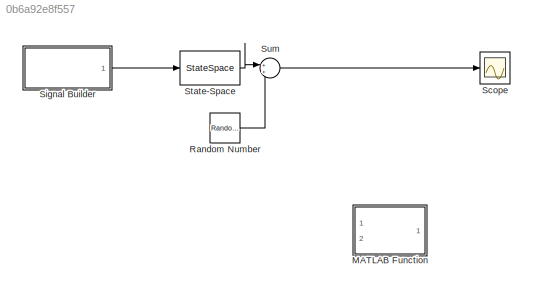
MODEL slx_0b6a92e8f557
KIND model
CONFIG AbsTol = auto
CONFIG EnableMultiTasking = off
CONFIG FixedStep = auto
CONFIG MaxStep = auto
CONFIG MinStep = auto
CONFIG RelTol = 1e-3
CONFIG SampleTimeConstraint = Unconstrained
CONFIG Solver = VariableStepAuto
CONFIG SolverName = VariableStepAuto
CONFIG StartTime = 0.0
CONFIG StopTime = 10.0
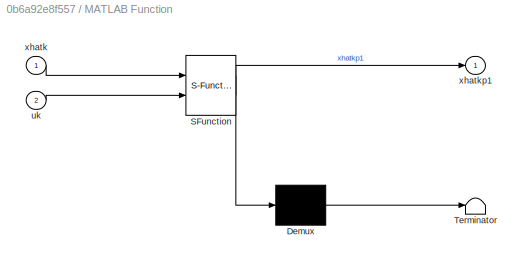
BLOCK [SubSystem] MATLAB Function
  ErrorFcn = Stateflow.Translate.translate
  PermitHierarchicalResolution = ExplicitOnly
  Ports = [2, 1]
  RequestExecContextInheritance = off
  SFBlockType = MATLAB Function
  TreatAsAtomicUnit = on
  Variant = off
BLOCK [Demux] MATLAB Function/ Demux 
  Outputs = 1
  Ports = [1, 1]
BLOCK [S-Function] MATLAB Function/ SFunction 
  EnableBusSupport = off
  FunctionName = sf_sfun
  PortCounts = [2 2]
  Ports = [2, 2]
  SFcnIsStateOwnerBlock = off
  SFunctionDeploymentMode = off
  Tag = Stateflow S-Function h34d 2
BLOCK [Terminator] MATLAB Function/ Terminator 
BLOCK [Inport] MATLAB Function/uk
  IconDisplay = Port number
  Port = 2
BLOCK [Inport] MATLAB Function/xhatk
  IconDisplay = Port number
BLOCK [Outport] MATLAB Function/xhatkp1
  IconDisplay = Port number
BLOCK [RandomNumber] Random Number
  SampleTime = 0.01
  Variance = [0.0001, 0.0000001, 0.00002, 0.00002]
BLOCK [Scope] Scope
  NumInputPorts = 1
  Ports = [1]
  ScopeSpecificationString = Simulink.scopes.TimeScopeBlockCfg('CurrentConfiguration', extmgr.ConfigurationSet(extmgr.Configuration('Core','General UI',true),extmgr.Configuration('Core','Source UI',true),extmgr.Configuration('Sources','WiredSimulink',true),extmgr.Configuration('Visuals','Time Domain',true,'SerializedDisplays',{struct('MinYLimReal','-0.10472','MaxYLimReal','0.38544','YLabelReal','','MinYLimMag','0.00000','MaxY...<+1506ch>
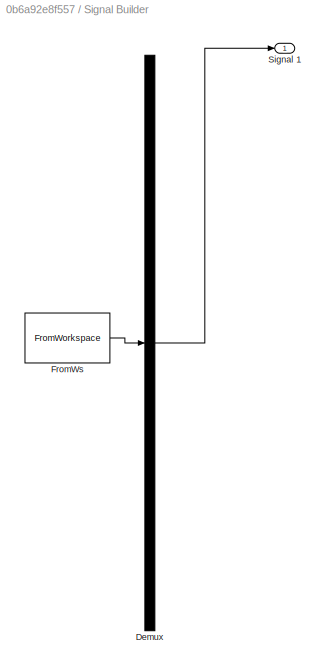
BLOCK [SubSystem] Signal Builder
  ClipboardFcn = sigbuilder_block('clipboard');
  CloseFcn = sigbuilder_block('close');
  ContinueFcn = sigbuilder_block('continue');
  CopyFcn = sigbuilder_block('copy');
  DeleteFcn = sigbuilder_block('delete');
  LoadFcn = sigbuilder_block('load');
  MaskHideContents = on
  ModelCloseFcn = sigbuilder_block('modelClose');
  NameChangeFcn = sigbuilder_block('namechange');
  OpenFcn = sigbuilder_block('open',[300 184.875 550.5 400.125 ]);
  PauseFcn = sigbuilder_block('pause');
  Ports = [0, 1]
  PreSaveFcn = sigbuilder_block('preSave');
  RequestExecContextInheritance = off
  StartFcn = sigbuilder_block('start');
  StopFcn = sigbuilder_block('stop');
  Tag = STV Subsys
  Variant = off
BLOCK [Demux] Signal Builder/Demux
  Outputs = 1
  Ports = [1, 1]
  Tag = STV Demux
BLOCK [FromWorkspace] Signal Builder/FromWs
  SampleTime = 0
  Tag = STV FromWs
  VariableName = tuvar
  ZeroCross = on
BLOCK [Outport] Signal Builder/Signal 1
  IconDisplay = Port number
  Tag = STV Outport
BLOCK [StateSpace] State-Space
  A = [0 1.0000 0 0;\n0 -0.9965 0 -0.3000;\n-0.3197 -0.5176 -0.0100 -0.7000;\n0 0 -0.0005 -0.9924];
  B = [ 0;\n-0.0013;\n0.0001;\n-0.0201];
  C = [0 0 0.9963 0.0862;\n0 0 -0.0001 0.0017;\n1.0000 0 0 0;\n0 1.0000 0 0];
  D = [0;0;0;0];
  Ports = [1, 1]
  X0 = 0
BLOCK [Sum] Sum
  IconShape = round
  InputSameDT = off
  Inputs = 2
  OutDataTypeStr = Inherit: Inherit via internal rule
  Ports = [2, 1]
  SaturateOnIntegerOverflow = off
LINE Random Number:1 -> Sum:2
LINE Signal Builder:1 -> State-Space:1
LINE State-Space:1 -> Sum:1
LINE Sum:1 -> Scope:1
CHART MATLAB Function states=1 transitions=1
  STATE_LABEL 'eML_blk_kernel()'
  STATE_LABEL 'SCRIPT:\nfunction xhatkp1 = fcn(xhatk,uk)\na = [0 1.0000 0 0;\n0 -0.9965 0 -0.3000;\n-0.3197 -0.5176 -0.0100 -0.7000;\n0 0 -0.0005 -0.9924];\nb =[ 0;\n-0.0013;\n0.0001;\n-0.0201];\nc =[0 0 0.9963 0.0862;\n0 0 -0.0001 0.0017;\n1.0000 0 0 0;\n0 1.0000 0 0];\n\nxhatkp1=\n\n'
